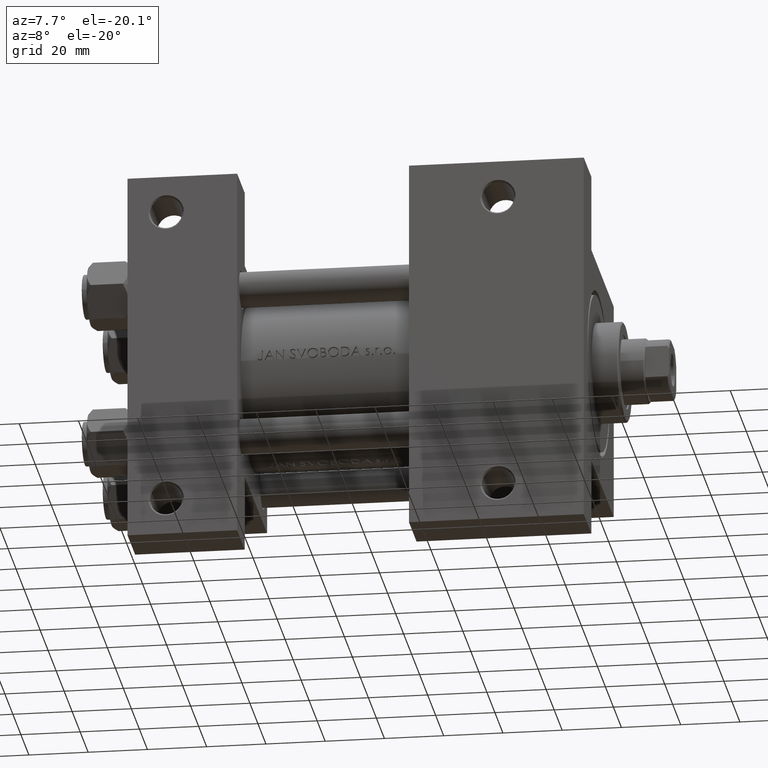
[diagram: clean part render]
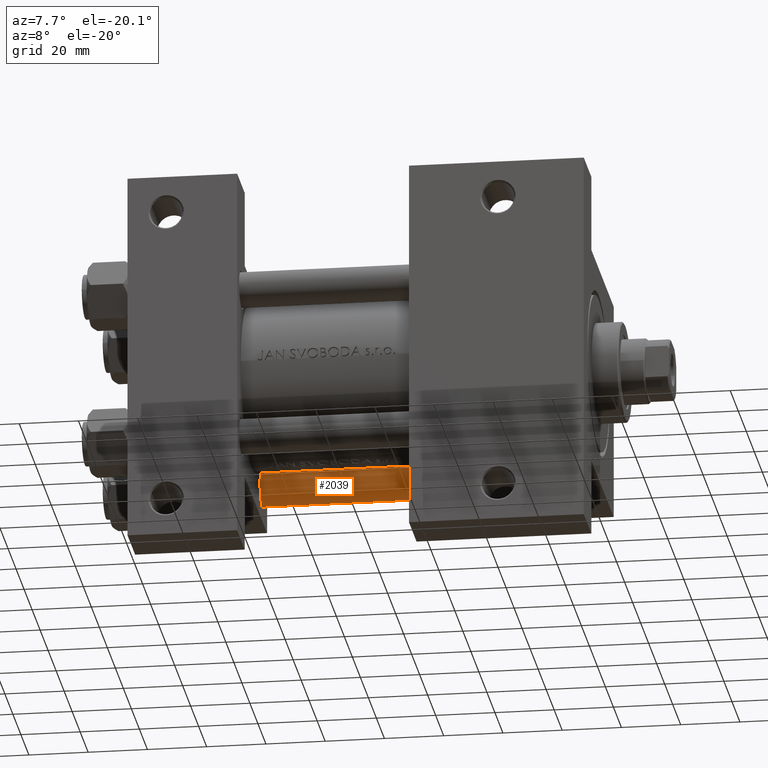
[diagram: same view with one face highlighted and labeled with its STEP entity id]
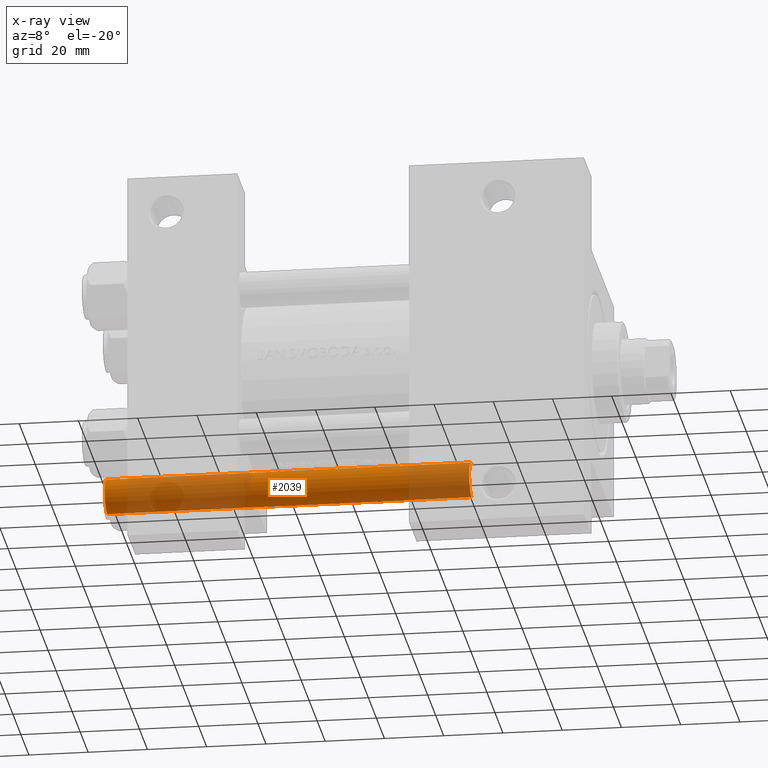
[diagram: x-ray of the same camera — body ghosted, the highlighted face saturated]
A machine part, auxiliary view. The second image highlights one B-rep face of the part: STEP entity #2039.
The next image is the same camera in x-ray: the body ghosted, the highlighted face saturated — about 49% of this face is hidden behind the body in this view.
In plain terms, the highlighted cylindrical surface (edge-blend (fillet) strip) has radius 6 mm, axis along (1, -0, -0).
Its self-contained STEP definition (entity closure, byte-faithful):
#1124 = CARTESIAN_POINT ( 'NONE',  ( -6.000000000000000888, 0.000000000000000000, 0.4999999999999865663 ) ) ;
#1342 = VERTEX_POINT ( 'NONE', #1124 ) ;
#1713 = DIRECTION ( 'NONE',  ( 1.000000000000000000, 0.000000000000000000, 0.000000000000000000 ) ) ;
#2039 = ADVANCED_FACE ( 'NONE', ( #40333 ), #11255, .T. ) ;
#2164 = VECTOR ( 'NONE', #36874, 1000.000000000000000 ) ;
#3458 = AXIS2_PLACEMENT_3D ( 'NONE', #43922, #4285, #42790 ) ;
#4285 = DIRECTION ( 'NONE',  ( -0.000000000000000000, -0.000000000000000000, -1.000000000000000000 ) ) ;
#4314 = AXIS2_PLACEMENT_3D ( 'NONE', #25956, #11293, #33163 ) ;
#5564 = DIRECTION ( 'NONE',  ( 0.000000000000000000, 0.000000000000000000, -1.000000000000000000 ) ) ;
#5919 = EDGE_CURVE ( 'NONE', #15029, #20374, #14995, .T. ) ;
#6599 = CIRCLE ( 'NONE', #4314, 6.000000000000000888 ) ;
#8507 = DIRECTION ( 'NONE',  ( -0.000000000000000000, -0.000000000000000000, -1.000000000000000000 ) ) ;
#10283 = CARTESIAN_POINT ( 'NONE',  ( 0.000000000000000000, 0.000000000000000000, 123.5000000000000426 ) ) ;
#11255 = CYLINDRICAL_SURFACE ( 'NONE', #3458, 6.000000000000000888 ) ;
#11293 = DIRECTION ( 'NONE',  ( -0.000000000000000000, -0.000000000000000000, 1.000000000000000000 ) ) ;
#12332 = CARTESIAN_POINT ( 'NONE',  ( -6.000000000000000888, 0.000000000000000000, 123.5000000000000426 ) ) ;
#14565 = ORIENTED_EDGE ( 'NONE', *, *, #47320, .T. ) ;
#14995 = LINE ( 'NONE', #44306, #2164 ) ;
#15029 = VERTEX_POINT ( 'NONE', #36245 ) ;
#20374 = VERTEX_POINT ( 'NONE', #41652 ) ;
#25956 = CARTESIAN_POINT ( 'NONE',  ( 0.000000000000000000, 0.000000000000000000, 0.4999999999999865663 ) ) ;
#27487 = CARTESIAN_POINT ( 'NONE',  ( -6.000000000000000888, 0.000000000000000000, 124.0000000000000000 ) ) ;
#29929 = ORIENTED_EDGE ( 'NONE', *, *, #33274, .T. ) ;
#32124 = EDGE_CURVE ( 'NONE', #1342, #20374, #6599, .T. ) ;
#32761 = EDGE_LOOP ( 'NONE', ( #45746, #29929, #14565, #38325 ) ) ;
#33163 = DIRECTION ( 'NONE',  ( 1.000000000000000000, 0.000000000000000000, 0.000000000000000000 ) ) ;
#33274 = EDGE_CURVE ( 'NONE', #15029, #35702, #33514, .T. ) ;
#33514 = CIRCLE ( 'NONE', #35801, 6.000000000000000888 ) ;
#34932 = LINE ( 'NONE', #27487, #46445 ) ;
#35702 = VERTEX_POINT ( 'NONE', #12332 ) ;
#35801 = AXIS2_PLACEMENT_3D ( 'NONE', #10283, #5564, #1713 ) ;
#36245 = CARTESIAN_POINT ( 'NONE',  ( 6.000000000000000888, 7.347880794884120722E-16, 123.5000000000000426 ) ) ;
#36874 = DIRECTION ( 'NONE',  ( -0.000000000000000000, -0.000000000000000000, -1.000000000000000000 ) ) ;
#38325 = ORIENTED_EDGE ( 'NONE', *, *, #32124, .T. ) ;
#40333 = FACE_OUTER_BOUND ( 'NONE', #32761, .T. ) ;
#41652 = CARTESIAN_POINT ( 'NONE',  ( 6.000000000000000888, 7.347880794884120722E-16, 0.4999999999999865663 ) ) ;
#42790 = DIRECTION ( 'NONE',  ( -1.000000000000000000, 0.000000000000000000, 0.000000000000000000 ) ) ;
#43922 = CARTESIAN_POINT ( 'NONE',  ( 0.000000000000000000, 0.000000000000000000, 124.0000000000000000 ) ) ;
#44306 = CARTESIAN_POINT ( 'NONE',  ( 6.000000000000000888, 7.347880794884120722E-16, 124.0000000000000000 ) ) ;
#45746 = ORIENTED_EDGE ( 'NONE', *, *, #5919, .F. ) ;
#46445 = VECTOR ( 'NONE', #8507, 1000.000000000000000 ) ;
#47320 = EDGE_CURVE ( 'NONE', #35702, #1342, #34932, .T. ) ;